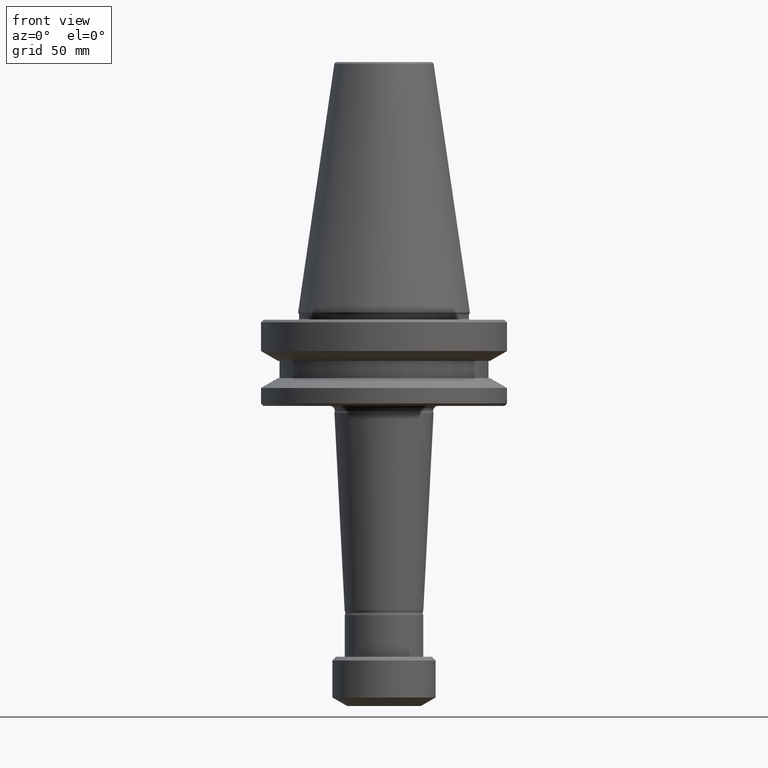
[diagram: clean part render]
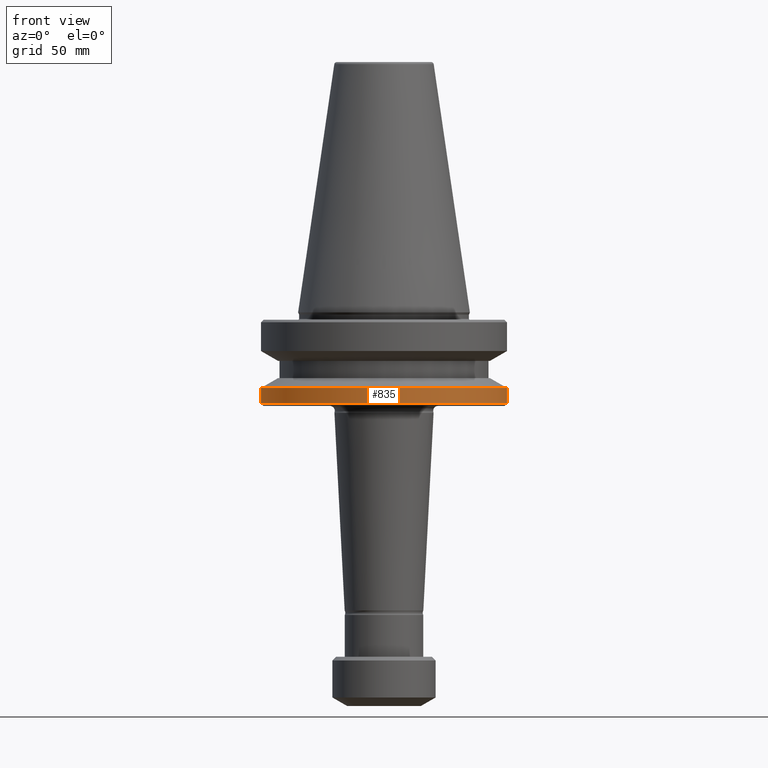
[diagram: same view with one face highlighted and labeled with its STEP entity id]
A machine part, front view. The second image highlights one B-rep face of the part: STEP entity #835.
In plain terms, the highlighted cylindrical surface (partial cylindrical patch) has radius 50 mm, axis along (-0, -0, 1).
Its self-contained STEP definition (entity closure, byte-faithful):
#25 = AXIS2_PLACEMENT_3D ( 'NONE', #344, #365, #520 ) ;
#29 = DIRECTION ( 'NONE',  ( -0.0000000000000000000, -0.0000000000000000000, 1.000000000000000000 ) ) ;
#32 = AXIS2_PLACEMENT_3D ( 'NONE', #1027, #623, #179 ) ;
#38 = CARTESIAN_POINT ( 'NONE',  ( -50.00000000000015600, 6.123233995736785000E-015, -30.69977999677485400 ) ) ;
#81 = ORIENTED_EDGE ( 'NONE', *, *, #115, .T. ) ;
#91 = VERTEX_POINT ( 'NONE', #38 ) ;
#115 = EDGE_CURVE ( 'NONE', #1178, #1304, #1351, .T. ) ;
#159 = AXIS2_PLACEMENT_3D ( 'NONE', #1145, #793, #587 ) ;
#179 = DIRECTION ( 'NONE',  ( 1.000000000000000000, 0.0000000000000000000, 0.0000000000000000000 ) ) ;
#201 = CARTESIAN_POINT ( 'NONE',  ( 50.00000000000015600, 0.0000000000000000000, -37.00000000000179800 ) ) ;
#299 = EDGE_CURVE ( 'NONE', #91, #1304, #595, .T. ) ;
#344 = CARTESIAN_POINT ( 'NONE',  ( 0.0000000000000000000, 0.0000000000000000000, 122.8463315447037200 ) ) ;
#356 = CARTESIAN_POINT ( 'NONE',  ( 50.00000000000015600, 0.0000000000000000000, 122.8463315447037200 ) ) ;
#357 = CARTESIAN_POINT ( 'NONE',  ( -50.00000000000015600, 6.123233995736785000E-015, 122.8463315447037200 ) ) ;
#365 = DIRECTION ( 'NONE',  ( -0.0000000000000000000, -0.0000000000000000000, 1.000000000000000000 ) ) ;
#451 = ORIENTED_EDGE ( 'NONE', *, *, #754, .T. ) ;
#460 = EDGE_LOOP ( 'NONE', ( #618, #451, #81, #470 ) ) ;
#470 = ORIENTED_EDGE ( 'NONE', *, *, #299, .F. ) ;
#520 = DIRECTION ( 'NONE',  ( 1.000000000000000000, 0.0000000000000000000, 0.0000000000000000000 ) ) ;
#587 = DIRECTION ( 'NONE',  ( 1.000000000000000000, 0.0000000000000000000, 0.0000000000000000000 ) ) ;
#595 = CIRCLE ( 'NONE', #159, 50.00000000000015600 ) ;
#618 = ORIENTED_EDGE ( 'NONE', *, *, #986, .F. ) ;
#623 = DIRECTION ( 'NONE',  ( -0.0000000000000000000, -0.0000000000000000000, 1.000000000000000000 ) ) ;
#651 = CYLINDRICAL_SURFACE ( 'NONE', #25, 50.00000000000015600 ) ;
#689 = VERTEX_POINT ( 'NONE', #821 ) ;
#754 = EDGE_CURVE ( 'NONE', #689, #1178, #1285, .T. ) ;
#763 = VECTOR ( 'NONE', #29, 1000.000000000000000 ) ;
#793 = DIRECTION ( 'NONE',  ( -0.0000000000000000000, -0.0000000000000000000, 1.000000000000000000 ) ) ;
#821 = CARTESIAN_POINT ( 'NONE',  ( -50.00000000000015600, 6.123233995736785000E-015, -37.00000000000179800 ) ) ;
#835 = ADVANCED_FACE ( 'NONE', ( #1207 ), #651, .T. ) ;
#983 = VECTOR ( 'NONE', #1308, 1000.000000000000000 ) ;
#986 = EDGE_CURVE ( 'NONE', #689, #91, #1299, .T. ) ;
#1027 = CARTESIAN_POINT ( 'NONE',  ( 0.0000000000000000000, 0.0000000000000000000, -37.00000000000179800 ) ) ;
#1145 = CARTESIAN_POINT ( 'NONE',  ( 0.0000000000000000000, 0.0000000000000000000, -30.69977999677485400 ) ) ;
#1178 = VERTEX_POINT ( 'NONE', #201 ) ;
#1207 = FACE_OUTER_BOUND ( 'NONE', #460, .T. ) ;
#1284 = CARTESIAN_POINT ( 'NONE',  ( 50.00000000000015600, 0.0000000000000000000, -30.69977999677485400 ) ) ;
#1285 = CIRCLE ( 'NONE', #32, 50.00000000000015600 ) ;
#1299 = LINE ( 'NONE', #357, #983 ) ;
#1304 = VERTEX_POINT ( 'NONE', #1284 ) ;
#1308 = DIRECTION ( 'NONE',  ( -0.0000000000000000000, -0.0000000000000000000, 1.000000000000000000 ) ) ;
#1351 = LINE ( 'NONE', #356, #763 ) ;